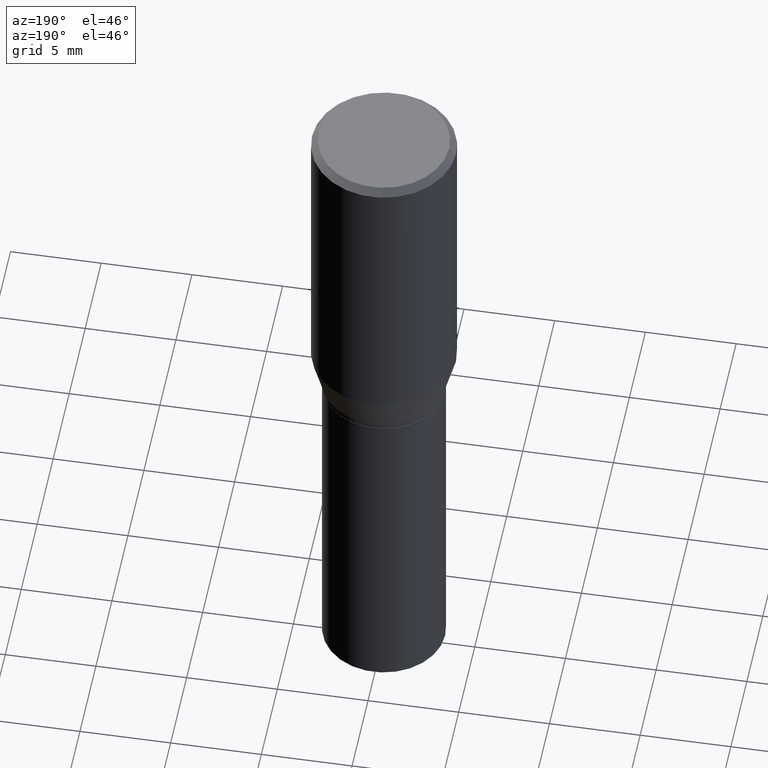
[diagram: clean part render]
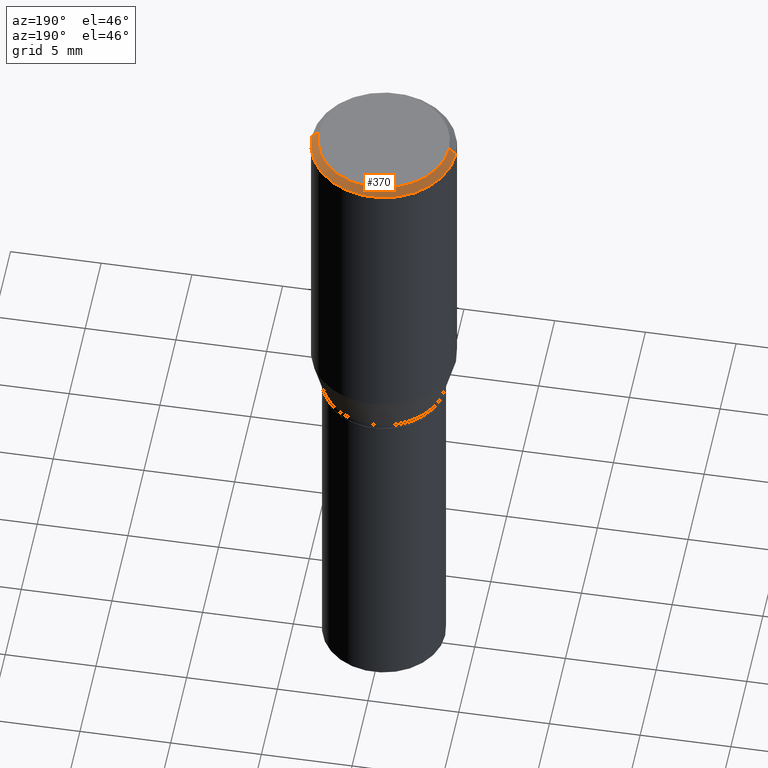
[diagram: same view with one face highlighted and labeled with its STEP entity id]
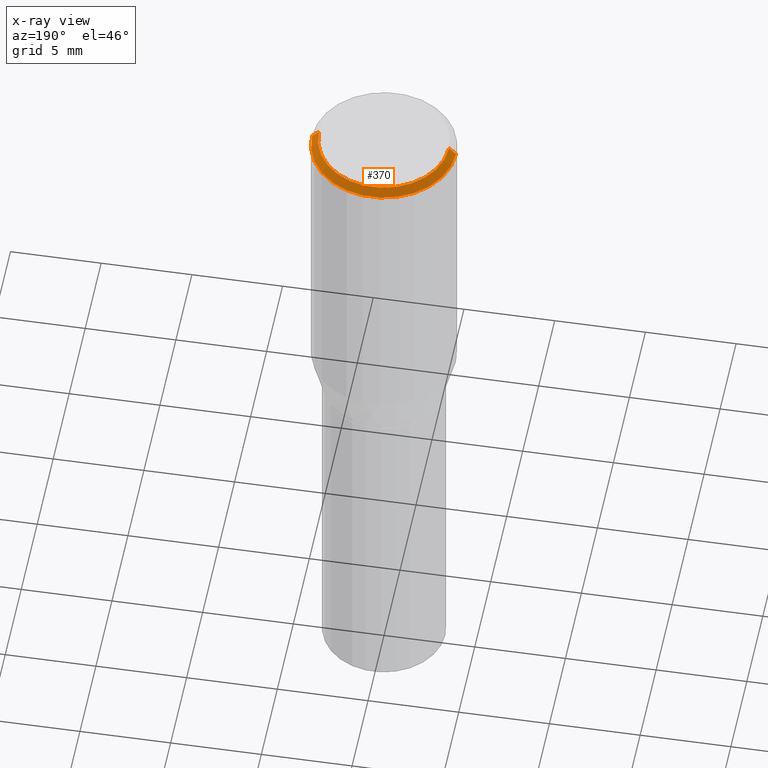
[diagram: x-ray of the same camera — body ghosted, the highlighted face saturated]
A machine part, auxiliary view. The second image highlights one B-rep face of the part: STEP entity #370.
The next image is the same camera in x-ray: the body ghosted, the highlighted face saturated — about 0% of this face is hidden behind the body in this view.
In plain terms, the highlighted conical surface has half-angle 45 deg.
Its self-contained STEP definition (entity closure, byte-faithful):
#13 = DIRECTION ( 'NONE',  ( 0.7071067811865483499, -7.319954787623257623E-15, -0.7071067811865466846 ) ) ;
#19 = CIRCLE ( 'NONE', #266, 0.1562500000000000000 ) ;
#23 = DIRECTION ( 'NONE',  ( -0.7071067811865483499, 2.468850131082265738E-15, -0.7071067811865466846 ) ) ;
#55 = CARTESIAN_POINT ( 'NONE',  ( 3.668203209277705088E-31, -5.237222008264718399E-17, -0.01499999999999999944 ) ) ;
#61 = DIRECTION ( 'NONE',  ( 1.000000000000000000, -6.982962677686266711E-15, 0.000000000000000000 ) ) ;
#62 = EDGE_CURVE ( 'NONE', #317, #88, #19, .T. ) ;
#83 = EDGE_LOOP ( 'NONE', ( #371, #113, #298, #231 ) ) ;
#84 = DIRECTION ( 'NONE',  ( 2.445468806185136597E-29, -3.491481338843145583E-15, -1.000000000000000000 ) ) ;
#88 = VERTEX_POINT ( 'NONE', #257 ) ;
#107 = CARTESIAN_POINT ( 'NONE',  ( 0.1562500000000000000, -1.124325032234449083E-15, -0.01499999999999999944 ) ) ;
#113 = ORIENTED_EDGE ( 'NONE', *, *, #289, .T. ) ;
#144 = FACE_OUTER_BOUND ( 'NONE', #83, .T. ) ;
#152 = CARTESIAN_POINT ( 'NONE',  ( 1.066899386337773103E-45, -1.523249566054587316E-31, -4.362760153142606033E-17 ) ) ;
#166 = CARTESIAN_POINT ( 'NONE',  ( -0.1562500000000000000, 1.038715698305832094E-15, -0.01499999999999999944 ) ) ;
#196 = DIRECTION ( 'NONE',  ( -1.000000000000000000, 6.982962677686266711E-15, 0.000000000000000000 ) ) ;
#231 = ORIENTED_EDGE ( 'NONE', *, *, #310, .F. ) ;
#256 = LINE ( 'NONE', #166, #361 ) ;
#257 = CARTESIAN_POINT ( 'NONE',  ( -0.1562500000000000000, -5.502990786655347834E-17, -0.01499999999999999944 ) ) ;
#266 = AXIS2_PLACEMENT_3D ( 'NONE', #414, #381, #61 ) ;
#268 = EDGE_CURVE ( 'NONE', #417, #409, #368, .T. ) ;
#269 = CARTESIAN_POINT ( 'NONE',  ( 0.1412500000000000144, -1.046685187209839144E-15, -4.362760153141894826E-17 ) ) ;
#284 = DIRECTION ( 'NONE',  ( -2.445468806185136597E-29, 3.491481338843145583E-15, 1.000000000000000000 ) ) ;
#289 = EDGE_CURVE ( 'NONE', #417, #317, #330, .T. ) ;
#298 = ORIENTED_EDGE ( 'NONE', *, *, #62, .T. ) ;
#308 = VECTOR ( 'NONE', #13, 39.37007874015748143 ) ;
#310 = EDGE_CURVE ( 'NONE', #409, #88, #256, .T. ) ;
#317 = VERTEX_POINT ( 'NONE', #401 ) ;
#326 = AXIS2_PLACEMENT_3D ( 'NONE', #152, #284, #354 ) ;
#330 = LINE ( 'NONE', #107, #308 ) ;
#354 = DIRECTION ( 'NONE',  ( 1.000000000000000000, -6.982962677686265922E-15, 4.874209154772796007E-29 ) ) ;
#361 = VECTOR ( 'NONE', #23, 39.37007874015748143 ) ;
#368 = CIRCLE ( 'NONE', #326, 0.1412500000000000144 ) ;
#370 = ADVANCED_FACE ( 'NONE', ( #144 ), #391, .T. ) ;
#371 = ORIENTED_EDGE ( 'NONE', *, *, #268, .F. ) ;
#381 = DIRECTION ( 'NONE',  ( -2.445468806185136597E-29, 3.491481338843145583E-15, 1.000000000000000000 ) ) ;
#391 = CONICAL_SURFACE ( 'NONE', #429, 0.1562500000000000000, 0.7853981633974495002 ) ;
#401 = CARTESIAN_POINT ( 'NONE',  ( 0.1562500000000000000, -1.143460138471126253E-15, -0.01499999999999999944 ) ) ;
#409 = VERTEX_POINT ( 'NONE', #466 ) ;
#414 = CARTESIAN_POINT ( 'NONE',  ( 3.668203209277705088E-31, -5.237222008264718399E-17, -0.01499999999999999944 ) ) ;
#417 = VERTEX_POINT ( 'NONE', #269 ) ;
#429 = AXIS2_PLACEMENT_3D ( 'NONE', #55, #84, #196 ) ;
#466 = CARTESIAN_POINT ( 'NONE',  ( -0.1412500000000000144, 1.012529588264508555E-15, -4.362760153143304915E-17 ) ) ;